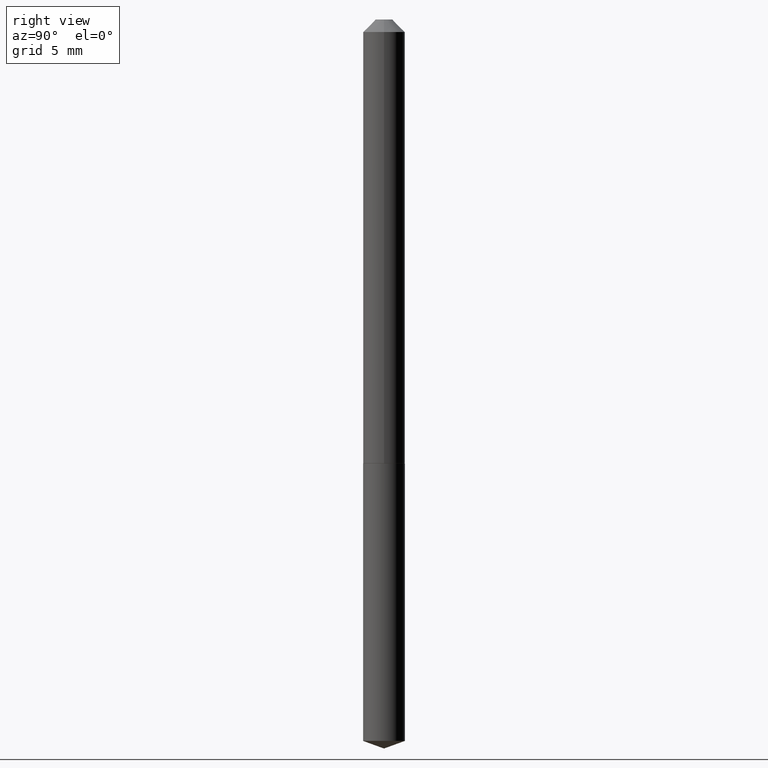
[diagram: clean part render]
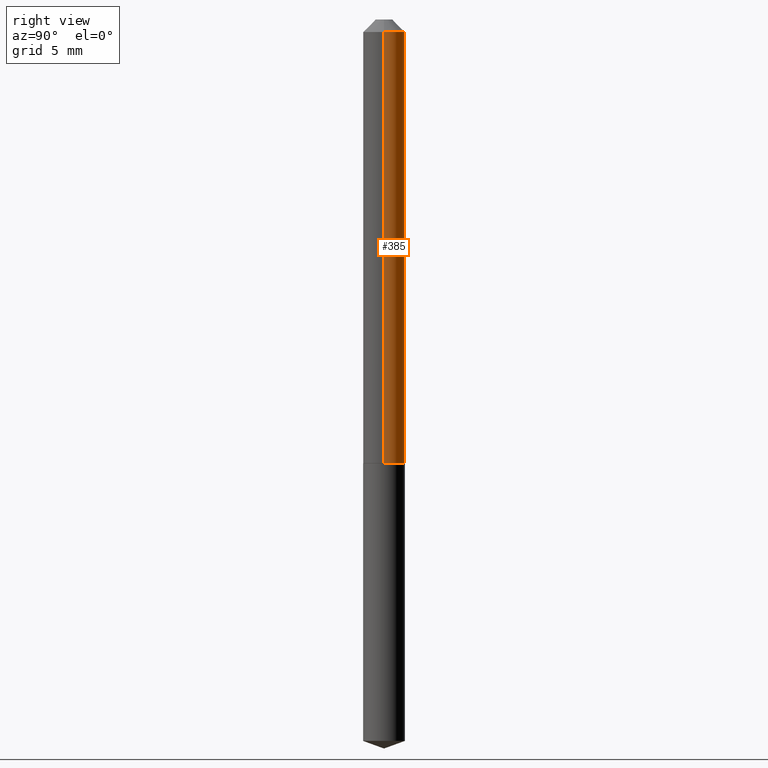
[diagram: same view with one face highlighted and labeled with its STEP entity id]
A machine part, right view. The second image highlights one B-rep face of the part: STEP entity #385.
In plain terms, the highlighted cylindrical surface (edge-blend (fillet) strip) has radius 1.3208 mm, axis along (-0, 0, 1).
Its self-contained STEP definition (entity closure, byte-faithful):
#10 = ORIENTED_EDGE ( 'NONE', *, *, #355, .F. ) ;
#14 = VERTEX_POINT ( 'NONE', #379 ) ;
#15 = CARTESIAN_POINT ( 'NONE',  ( 7.642090019328603538E-31, -1.091087918388490390E-16, -0.03125000000000021511 ) ) ;
#16 = ORIENTED_EDGE ( 'NONE', *, *, #289, .T. ) ;
#52 = FACE_OUTER_BOUND ( 'NONE', #331, .T. ) ;
#60 = VERTEX_POINT ( 'NONE', #343 ) ;
#67 = CIRCLE ( 'NONE', #294, 0.05200000000000012945 ) ;
#86 = DIRECTION ( 'NONE',  ( 1.000000000000000000, -6.982962677686266711E-15, 4.876176775795935793E-29 ) ) ;
#103 = CIRCLE ( 'NONE', #323, 0.05200000000000000455 ) ;
#107 = DIRECTION ( 'NONE',  ( -2.445468806185136877E-29, 3.491481338843145188E-15, 1.000000000000000000 ) ) ;
#115 = DIRECTION ( 'NONE',  ( 1.000000000000000000, -6.982962677686266711E-15, 0.000000000000000000 ) ) ;
#136 = LINE ( 'NONE', #285, #356 ) ;
#139 = LINE ( 'NONE', #256, #275 ) ;
#146 = VERTEX_POINT ( 'NONE', #389 ) ;
#171 = ORIENTED_EDGE ( 'NONE', *, *, #352, .F. ) ;
#210 = AXIS2_PLACEMENT_3D ( 'NONE', #266, #293, #86 ) ;
#212 = EDGE_CURVE ( 'NONE', #14, #146, #136, .T. ) ;
#223 = CARTESIAN_POINT ( 'NONE',  ( 2.698574827625298297E-29, -3.852849657413411415E-15, -1.103500000000000147 ) ) ;
#232 = DIRECTION ( 'NONE',  ( -2.445468806185136597E-29, 3.491481338843145583E-15, 1.000000000000000000 ) ) ;
#252 = DIRECTION ( 'NONE',  ( -2.445468806185136597E-29, 3.491481338843145583E-15, 1.000000000000000000 ) ) ;
#256 = CARTESIAN_POINT ( 'NONE',  ( 0.05200000000000006700, -3.631140592396863502E-16, 2.535611923413889961E-30 ) ) ;
#266 = CARTESIAN_POINT ( 'NONE',  ( 0.000000000000000000, 0.000000000000000000, 0.000000000000000000 ) ) ;
#275 = VECTOR ( 'NONE', #369, 39.37007874015748143 ) ;
#283 = DIRECTION ( 'NONE',  ( 1.000000000000000000, -6.982962677686269077E-15, 0.000000000000000000 ) ) ;
#285 = CARTESIAN_POINT ( 'NONE',  ( -0.05200000000000006700, 3.694822225952525727E-16, -2.557846246932554274E-30 ) ) ;
#289 = EDGE_CURVE ( 'NONE', #319, #14, #67, .T. ) ;
#293 = DIRECTION ( 'NONE',  ( -2.445468806185136597E-29, 3.491481338843145583E-15, 1.000000000000000000 ) ) ;
#294 = AXIS2_PLACEMENT_3D ( 'NONE', #223, #252, #283 ) ;
#311 = CARTESIAN_POINT ( 'NONE',  ( 0.05200000000000012945, -4.215963716653098357E-15, -1.103500000000000147 ) ) ;
#319 = VERTEX_POINT ( 'NONE', #311 ) ;
#323 = AXIS2_PLACEMENT_3D ( 'NONE', #15, #232, #115 ) ;
#331 = EDGE_LOOP ( 'NONE', ( #16, #338, #10, #171 ) ) ;
#338 = ORIENTED_EDGE ( 'NONE', *, *, #212, .T. ) ;
#343 = CARTESIAN_POINT ( 'NONE',  ( 0.05200000000000000455, -4.722228510785349578E-16, -0.03125000000000021511 ) ) ;
#352 = EDGE_CURVE ( 'NONE', #319, #60, #139, .T. ) ;
#354 = CYLINDRICAL_SURFACE ( 'NONE', #210, 0.05200000000000006700 ) ;
#355 = EDGE_CURVE ( 'NONE', #60, #146, #103, .T. ) ;
#356 = VECTOR ( 'NONE', #107, 39.37007874015748143 ) ;
#369 = DIRECTION ( 'NONE',  ( -2.445468806185136877E-29, 3.491481338843145188E-15, 1.000000000000000000 ) ) ;
#379 = CARTESIAN_POINT ( 'NONE',  ( -0.05200000000000012945, -3.483367434818158202E-15, -1.103500000000000147 ) ) ;
#385 = ADVANCED_FACE ( 'NONE', ( #52 ), #354, .T. ) ;
#389 = CARTESIAN_POINT ( 'NONE',  ( -0.05200000000000000455, -1.611497002030876847E-15, -0.03125000000000021511 ) ) ;